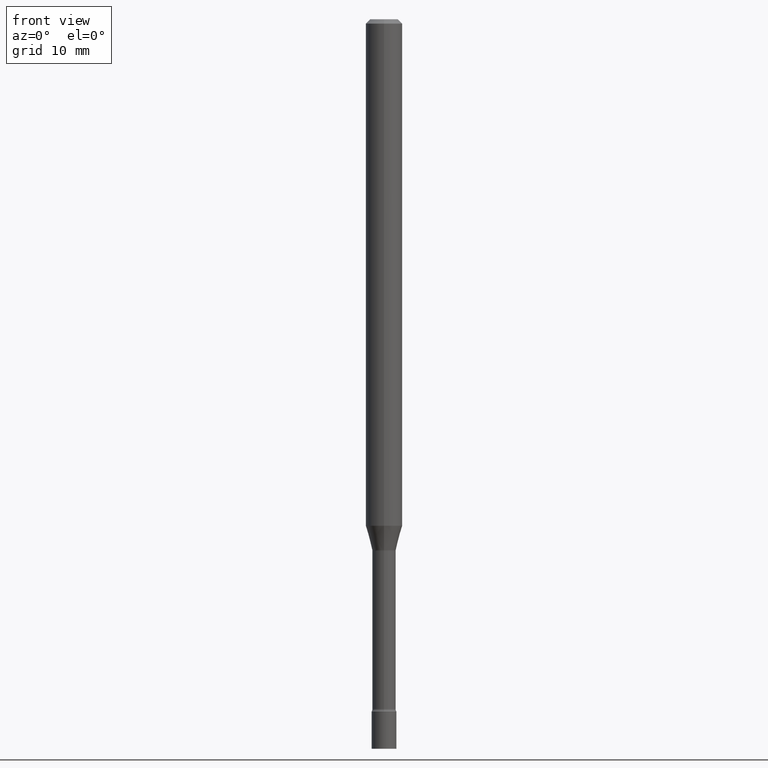
[diagram: clean part render]
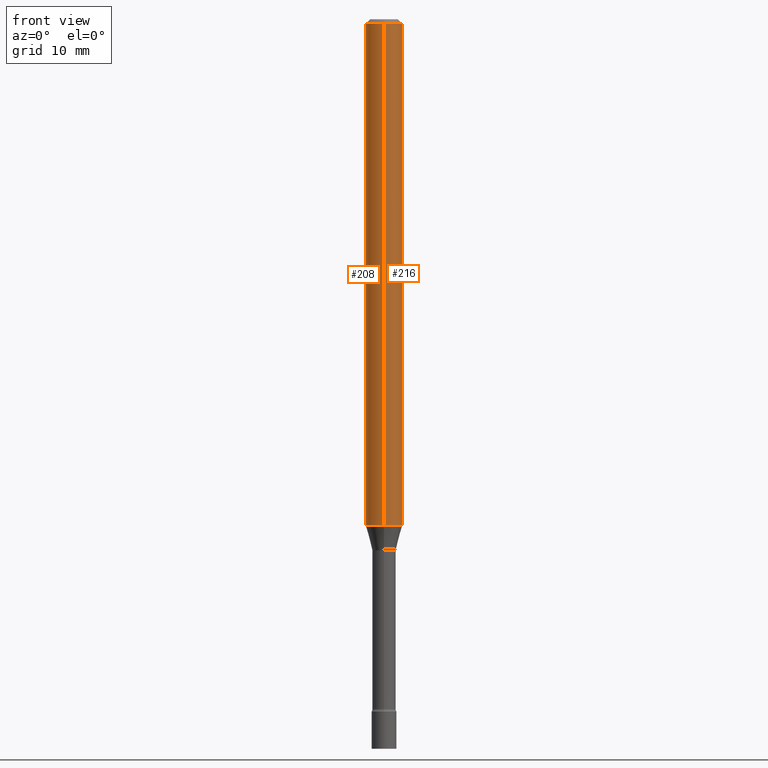
[diagram: same view with one multi-face feature highlighted, each face labeled with its STEP entity id]
A machine part, front view. The highlighted faces form ONE feature: a constant-radius fillet chain: 2 tangent blend faces with common blend radius 1.5875 mm. The faces share edges in the B-rep.
Their STEP definitions:
[1] entity #208 (Cylinder):
#2 = DIRECTION ( 'NONE',  ( -2.445529126728560125E-29, 3.491394956391731301E-15, 1.000000000000000000 ) ) ;
#5 = DIRECTION ( 'NONE',  ( -2.445529126728560125E-29, 3.491394956391731301E-15, 1.000000000000000000 ) ) ;
#6 = CARTESIAN_POINT ( 'NONE',  ( 4.245052792270701556E-29, -6.060510891717392968E-15, -1.735842254289322373 ) ) ;
#13 = CARTESIAN_POINT ( 'NONE',  ( -4.364351673553489723E-16, -0.06250000000000602296, -1.735842254289321929 ) ) ;
#43 = DIRECTION ( 'NONE',  ( -6.982962677686265922E-15, -1.000000000000000000, 3.491394956391730907E-15 ) ) ;
#63 = CARTESIAN_POINT ( 'NONE',  ( 4.440892098501054119E-16, 0.06249999999999995837, -0.01500000000000024751 ) ) ;
#90 = VERTEX_POINT ( 'NONE', #13 ) ;
#101 = AXIS2_PLACEMENT_3D ( 'NONE', #243, #400, #43 ) ;
#103 = DIRECTION ( 'NONE',  ( -2.445529126728560125E-29, 3.491394956391731301E-15, 1.000000000000000000 ) ) ;
#108 = CARTESIAN_POINT ( 'NONE',  ( 4.440892098501052147E-16, 0.06249999999999397010, -1.735842254289322595 ) ) ;
#112 = VERTEX_POINT ( 'NONE', #519 ) ;
#125 = CYLINDRICAL_SURFACE ( 'NONE', #101, 0.06250000000000000000 ) ;
#156 = CARTESIAN_POINT ( 'NONE',  ( 3.668293690092847124E-31, -5.237092434587606985E-17, -0.01500000000000003067 ) ) ;
#161 = CARTESIAN_POINT ( 'NONE',  ( -4.364351673553916201E-16, -0.06250000000000000000, 2.182121847744831817E-16 ) ) ;
#167 = FACE_OUTER_BOUND ( 'NONE', #249, .T. ) ;
#171 = ORIENTED_EDGE ( 'NONE', *, *, #209, .F. ) ;
#185 = ORIENTED_EDGE ( 'NONE', *, *, #205, .T. ) ;
#195 = CIRCLE ( 'NONE', #486, 0.06250000000000000000 ) ;
#197 = EDGE_CURVE ( 'NONE', #447, #90, #230, .T. ) ;
#204 = LINE ( 'NONE', #444, #485 ) ;
#205 = EDGE_CURVE ( 'NONE', #90, #112, #517, .T. ) ;
#208 = ADVANCED_FACE ( 'NONE', ( #167 ), #125, .T. ) ;
#209 = EDGE_CURVE ( 'NONE', #447, #422, #204, .T. ) ;
#227 = ORIENTED_EDGE ( 'NONE', *, *, #483, .F. ) ;
#230 = CIRCLE ( 'NONE', #279, 0.06250000000000000000 ) ;
#243 = CARTESIAN_POINT ( 'NONE',  ( 0.000000000000000000, 0.000000000000000000, 0.000000000000000000 ) ) ;
#249 = EDGE_LOOP ( 'NONE', ( #171, #491, #185, #227 ) ) ;
#279 = AXIS2_PLACEMENT_3D ( 'NONE', #6, #448, #363 ) ;
#319 = VECTOR ( 'NONE', #2, 39.37007874015748143 ) ;
#363 = DIRECTION ( 'NONE',  ( -6.982962677686265922E-15, -1.000000000000000000, 4.370956789862821150E-15 ) ) ;
#400 = DIRECTION ( 'NONE',  ( -2.445529126728560125E-29, 3.491394956391731301E-15, 1.000000000000000000 ) ) ;
#410 = DIRECTION ( 'NONE',  ( -6.982962677686265922E-15, -1.000000000000000000, 3.483106191921935554E-15 ) ) ;
#422 = VERTEX_POINT ( 'NONE', #63 ) ;
#444 = CARTESIAN_POINT ( 'NONE',  ( 4.440892098500625669E-16, 0.06250000000000000000, -2.182121847744831817E-16 ) ) ;
#447 = VERTEX_POINT ( 'NONE', #108 ) ;
#448 = DIRECTION ( 'NONE',  ( -2.445529126728560125E-29, 3.491394956391731301E-15, 1.000000000000000000 ) ) ;
#483 = EDGE_CURVE ( 'NONE', #422, #112, #195, .T. ) ;
#485 = VECTOR ( 'NONE', #5, 39.37007874015748143 ) ;
#486 = AXIS2_PLACEMENT_3D ( 'NONE', #156, #103, #410 ) ;
#491 = ORIENTED_EDGE ( 'NONE', *, *, #197, .T. ) ;
#517 = LINE ( 'NONE', #161, #319 ) ;
#519 = CARTESIAN_POINT ( 'NONE',  ( -4.364351673553912750E-16, -0.06250000000000005551, -0.01499999999999981209 ) ) ;
[2] entity #216 (Cylinder):
#2 = DIRECTION ( 'NONE',  ( -2.445529126728560125E-29, 3.491394956391731301E-15, 1.000000000000000000 ) ) ;
#5 = DIRECTION ( 'NONE',  ( -2.445529126728560125E-29, 3.491394956391731301E-15, 1.000000000000000000 ) ) ;
#13 = CARTESIAN_POINT ( 'NONE',  ( -4.364351673553489723E-16, -0.06250000000000602296, -1.735842254289321929 ) ) ;
#36 = CARTESIAN_POINT ( 'NONE',  ( 4.245052792270701556E-29, -6.060510891717392968E-15, -1.735842254289322373 ) ) ;
#52 = DIRECTION ( 'NONE',  ( -2.445529126728560125E-29, 3.491394956391731301E-15, 1.000000000000000000 ) ) ;
#63 = CARTESIAN_POINT ( 'NONE',  ( 4.440892098501054119E-16, 0.06249999999999995837, -0.01500000000000024751 ) ) ;
#68 = AXIS2_PLACEMENT_3D ( 'NONE', #398, #52, #248 ) ;
#76 = EDGE_CURVE ( 'NONE', #90, #447, #368, .T. ) ;
#84 = ORIENTED_EDGE ( 'NONE', *, *, #88, .F. ) ;
#88 = EDGE_CURVE ( 'NONE', #112, #422, #146, .T. ) ;
#90 = VERTEX_POINT ( 'NONE', #13 ) ;
#108 = CARTESIAN_POINT ( 'NONE',  ( 4.440892098501052147E-16, 0.06249999999999397010, -1.735842254289322595 ) ) ;
#112 = VERTEX_POINT ( 'NONE', #519 ) ;
#116 = ORIENTED_EDGE ( 'NONE', *, *, #205, .F. ) ;
#141 = DIRECTION ( 'NONE',  ( -6.982962677686265922E-15, -1.000000000000000000, 3.491394956391730907E-15 ) ) ;
#146 = CIRCLE ( 'NONE', #68, 0.06250000000000000000 ) ;
#161 = CARTESIAN_POINT ( 'NONE',  ( -4.364351673553916201E-16, -0.06250000000000000000, 2.182121847744831817E-16 ) ) ;
#166 = CYLINDRICAL_SURFACE ( 'NONE', #186, 0.06250000000000000000 ) ;
#186 = AXIS2_PLACEMENT_3D ( 'NONE', #420, #219, #141 ) ;
#204 = LINE ( 'NONE', #444, #485 ) ;
#205 = EDGE_CURVE ( 'NONE', #90, #112, #517, .T. ) ;
#209 = EDGE_CURVE ( 'NONE', #447, #422, #204, .T. ) ;
#216 = ADVANCED_FACE ( 'NONE', ( #290 ), #166, .T. ) ;
#219 = DIRECTION ( 'NONE',  ( -2.445529126728560125E-29, 3.491394956391731301E-15, 1.000000000000000000 ) ) ;
#248 = DIRECTION ( 'NONE',  ( -6.982962677686265922E-15, -1.000000000000000000, 3.483106191921935554E-15 ) ) ;
#290 = FACE_OUTER_BOUND ( 'NONE', #351, .T. ) ;
#314 = DIRECTION ( 'NONE',  ( -6.982962677686265922E-15, -1.000000000000000000, 4.370956789862821150E-15 ) ) ;
#318 = DIRECTION ( 'NONE',  ( -2.445529126728560125E-29, 3.491394956391731301E-15, 1.000000000000000000 ) ) ;
#319 = VECTOR ( 'NONE', #2, 39.37007874015748143 ) ;
#351 = EDGE_LOOP ( 'NONE', ( #366, #498, #84, #116 ) ) ;
#366 = ORIENTED_EDGE ( 'NONE', *, *, #76, .T. ) ;
#368 = CIRCLE ( 'NONE', #416, 0.06250000000000000000 ) ;
#398 = CARTESIAN_POINT ( 'NONE',  ( 3.668293690092847124E-31, -5.237092434587606985E-17, -0.01500000000000003067 ) ) ;
#416 = AXIS2_PLACEMENT_3D ( 'NONE', #36, #318, #314 ) ;
#420 = CARTESIAN_POINT ( 'NONE',  ( 0.000000000000000000, 0.000000000000000000, 0.000000000000000000 ) ) ;
#422 = VERTEX_POINT ( 'NONE', #63 ) ;
#444 = CARTESIAN_POINT ( 'NONE',  ( 4.440892098500625669E-16, 0.06250000000000000000, -2.182121847744831817E-16 ) ) ;
#447 = VERTEX_POINT ( 'NONE', #108 ) ;
#485 = VECTOR ( 'NONE', #5, 39.37007874015748143 ) ;
#498 = ORIENTED_EDGE ( 'NONE', *, *, #209, .T. ) ;
#517 = LINE ( 'NONE', #161, #319 ) ;
#519 = CARTESIAN_POINT ( 'NONE',  ( -4.364351673553912750E-16, -0.06250000000000005551, -0.01499999999999981209 ) ) ;